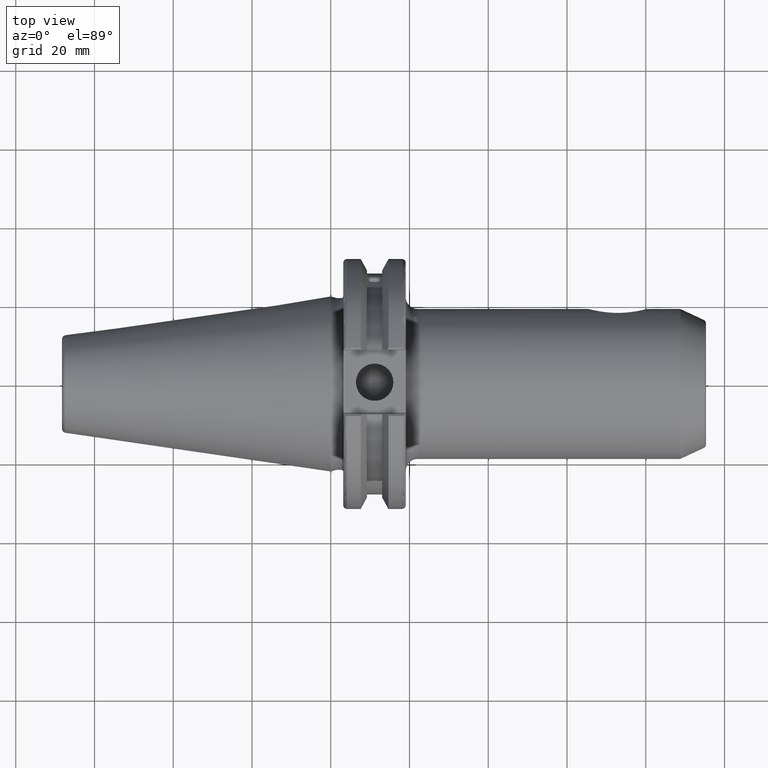
[diagram: clean part render]
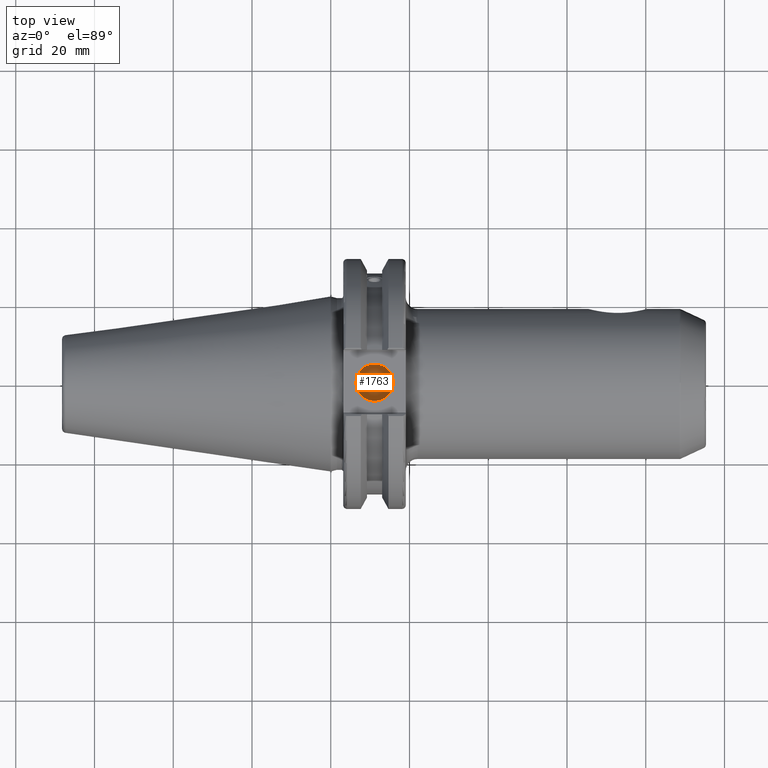
[diagram: same view with one face highlighted and labeled with its STEP entity id]
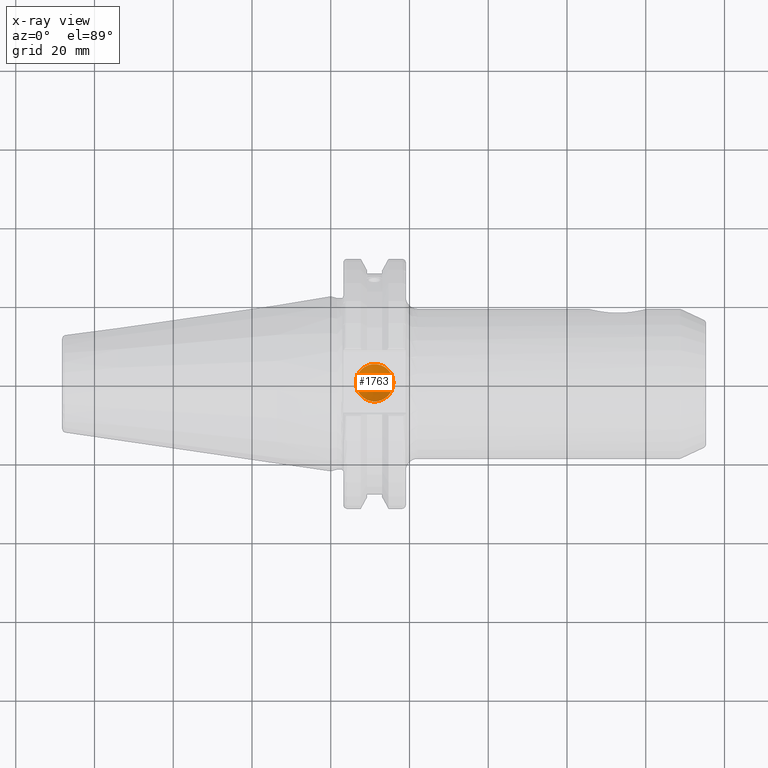
[diagram: x-ray of the same camera — body ghosted, the highlighted face saturated]
A machine part, top view. The second image highlights one B-rep face of the part: STEP entity #1763.
The next image is the same camera in x-ray: the body ghosted, the highlighted face saturated — about 0% of this face is hidden behind the body in this view.
In plain terms, the highlighted conical surface has half-angle 59 deg.
Its self-contained STEP definition (entity closure, byte-faithful):
#123=CONICAL_SURFACE('',#1987,2.38125,1.02974425867665);
#201=FACE_OUTER_BOUND('',#306,.T.);
#306=EDGE_LOOP('',(#1584,#1585,#1586,#1587));
#444=LINE('',#3434,#536);
#536=VECTOR('',#2487,2.38125);
#639=CIRCLE('',#1988,4.7625);
#640=CIRCLE('',#1989,4.7625);
#837=VERTEX_POINT('',#3430);
#838=VERTEX_POINT('',#3431);
#839=VERTEX_POINT('',#3433);
#1099=EDGE_CURVE('',#837,#838,#639,.T.);
#1100=EDGE_CURVE('',#838,#839,#444,.T.);
#1101=EDGE_CURVE('',#838,#837,#640,.T.);
#1584=ORIENTED_EDGE('',*,*,#1099,.T.);
#1585=ORIENTED_EDGE('',*,*,#1100,.T.);
#1586=ORIENTED_EDGE('',*,*,#1100,.F.);
#1587=ORIENTED_EDGE('',*,*,#1101,.T.);
#1763=ADVANCED_FACE('',(#201),#123,.F.);
#1987=AXIS2_PLACEMENT_3D('',#3429,#2483,#2484);
#1988=AXIS2_PLACEMENT_3D('',#3432,#2485,#2486);
#1989=AXIS2_PLACEMENT_3D('',#3435,#2488,#2489);
#2483=DIRECTION('center_axis',(0.,0.,1.));
#2484=DIRECTION('ref_axis',(1.,0.,0.));
#2485=DIRECTION('center_axis',(0.,0.,1.));
#2486=DIRECTION('ref_axis',(1.,0.,0.));
#2487=DIRECTION('',(0.857167300702112,1.04972719113862E-16,-0.515038074910054));
#2488=DIRECTION('center_axis',(0.,0.,1.));
#2489=DIRECTION('ref_axis',(1.,0.,0.));
#3429=CARTESIAN_POINT('Origin',(11.1341,0.,15.5692006509406));
#3430=CARTESIAN_POINT('',(15.8966,0.,17.));
#3431=CARTESIAN_POINT('',(6.3716,-5.83238038093927E-16,17.));
#3432=CARTESIAN_POINT('Origin',(11.1341,0.,17.));
#3433=CARTESIAN_POINT('',(11.1341,0.,14.1384013018812));
#3434=CARTESIAN_POINT('',(8.75285,-2.91619019046964E-16,15.5692006509406));
#3435=CARTESIAN_POINT('Origin',(11.1341,0.,17.));